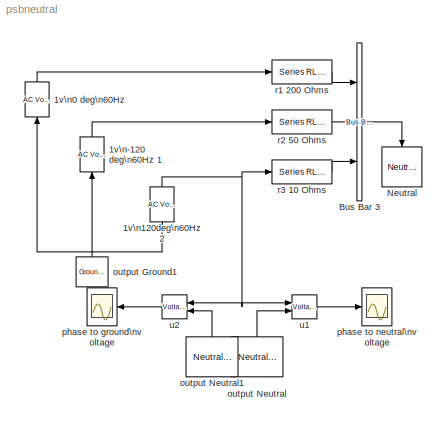
MODEL psbneutral
KIND model
BLOCK [Reference] 1v\n-120 deg\n60Hz 1  REF=powerlib2/Electrical\nSources/AC Voltage Source
  A = 1
  F = 60
  P = -120
  PSBOutputType = 1
  Ports = [1, 1]
  SourceBlock = powerlib2/Electrical\nSources/AC Voltage Source
  SourceType = AC Voltage Source
  Tag = PoWeRsYsTeMbLoCk
  mesure = None
  stime = 0
BLOCK [Reference] 1v\n0 deg\n60Hz   REF=powerlib2/Electrical\nSources/AC Voltage Source
  A = 1
  F = 60
  P = 0
  PSBOutputType = 1
  Ports = [1, 1]
  SourceBlock = powerlib2/Electrical\nSources/AC Voltage Source
  SourceType = AC Voltage Source
  Tag = PoWeRsYsTeMbLoCk
  mesure = None
  stime = 0
BLOCK [Reference] 1v\n120deg\n60Hz 2  REF=powerlib2/Electrical\nSources/AC Voltage Source
  A = 1
  F = 60
  P = 120
  PSBOutputType = 1
  Ports = [1, 1]
  SourceBlock = powerlib2/Electrical\nSources/AC Voltage Source
  SourceType = AC Voltage Source
  Tag = PoWeRsYsTeMbLoCk
  mesure = None
  stime = 0
BLOCK [Reference] Bus Bar 3  REF=powerlib2/Connectors/Bus Bar (thin vert)
  PSBOutputType = 111111111111111111111111111111111111111111111111111111111111111111111111111111111111
  Ports = [3, 1]
  SourceBlock = powerlib2/Connectors/Bus Bar (thin vert)
  SourceType = Bus Bar
  Tag = PoWeRsYsTeMbLoCk
  input = 3
  output = 1
BLOCK [Reference] Neutral  REF=powerlib2/Connectors/Neutral (input)
  Ports = [1]
  SourceBlock = powerlib2/Connectors/Neutral (input)
  SourceType = Neutral
  Tag = PoWeRsYsTeMbLoCk
  no = 50
BLOCK [Reference] output Ground1  REF=powerlib2/Connectors/Ground (output)
  PSBOutputType = 1
  Ports = [0, 1]
  SourceBlock = powerlib2/Connectors/Ground (output)
  SourceType = Ground
  Tag = PoWeRsYsTeMbLoCk
BLOCK [Reference] output Neutral  REF=powerlib2/Connectors/Neutral (output)
  PSBOutputType = 1
  Ports = [0, 1]
  SourceBlock = powerlib2/Connectors/Neutral (output)
  SourceType = Neutral
  Tag = PoWeRsYsTeMbLoCk
  no = 50
BLOCK [Reference] output Neutral1  REF=powerlib2/Connectors/Neutral (output)
  PSBOutputType = 1
  Ports = [0, 1]
  SourceBlock = powerlib2/Connectors/Neutral (output)
  SourceType = Neutral
  Tag = PoWeRsYsTeMbLoCk
  no = 0
BLOCK [Scope] phase to ground\nvoltage
  DataFormat = Array
  NumInputPorts = 1
  Ports = [1]
  TickLabels = on
  TimeRange = 0.1
  YMax = 1.2
  YMin = -1.2
BLOCK [Scope] phase to neutral\nvoltage
  DataFormat = Array
  NumInputPorts = 1
  Ports = [1]
  TickLabels = on
  TimeRange = 0.1
  YMax = 1.2
  YMin = -1.2
BLOCK [Reference] r1 200 Ohms  REF=powerlib2/Elements/Series RLC Branch
  PSBOutputType = 1
  Ports = [1, 1]
  SourceBlock = powerlib2/Elements/Series RLC Branch
  SourceType = Series RLC Branch
  Tag = PoWeRsYsTeMbLoCk
  a = 200
  b = 0
  c = inf
  mesure = None
BLOCK [Reference] r2 50 Ohms  REF=powerlib2/Elements/Series RLC Branch
  PSBOutputType = 1
  Ports = [1, 1]
  SourceBlock = powerlib2/Elements/Series RLC Branch
  SourceType = Series RLC Branch
  Tag = PoWeRsYsTeMbLoCk
  a = 50
  b = 0
  c = inf
  mesure = None
BLOCK [Reference] r3 10 Ohms  REF=powerlib2/Elements/Series RLC Branch
  PSBOutputType = 1
  Ports = [1, 1]
  SourceBlock = powerlib2/Elements/Series RLC Branch
  SourceType = Series RLC Branch
  Tag = PoWeRsYsTeMbLoCk
  a = 10
  b = 0
  c = inf
  mesure = None
BLOCK [Reference] u1  REF=powerlib2/Measurements/Voltage Measurement
  OutputType = Magnitude
  PSBOutputType = 0
  PSBequivalent = 0
  PhasorSimulation = off
  Ports = [2, 1]
  SourceBlock = powerlib2/Measurements/Voltage Measurement
  SourceType = Voltage Measurement
  Tag = PoWeRsYsTeMmEaSuReMeNt
BLOCK [Reference] u2  REF=powerlib2/Measurements/Voltage Measurement
  OutputType = Magnitude
  PSBOutputType = 0
  PSBequivalent = 0
  PhasorSimulation = off
  Ports = [2, 1]
  SourceBlock = powerlib2/Measurements/Voltage Measurement
  SourceType = Voltage Measurement
  Tag = PoWeRsYsTeMmEaSuReMeNt
LINE 1v\n-120 deg\n60Hz 1:1 -> r2 50 Ohms:1
LINE 1v\n0 deg\n60Hz :1 -> r1 200 Ohms:1
NET 1v\n120deg\n60Hz 2:1 -> r3 10 Ohms:1, u1:1, u2:1
LINE Bus Bar 3:1 -> Neutral:1
NET output Ground1:1 -> 1v\n-120 deg\n60Hz 1:1, 1v\n0 deg\n60Hz :1, 1v\n120deg\n60Hz 2:1
LINE output Neutral1:1 -> u2:2
LINE output Neutral:1 -> u1:2
LINE r1 200 Ohms:1 -> Bus Bar 3:1
LINE r2 50 Ohms:1 -> Bus Bar 3:2
LINE r3 10 Ohms:1 -> Bus Bar 3:3
LINE u1:1 -> phase to neutral\nvoltage:1
LINE u2:1 -> phase to ground\nvoltage:1
note: NET lines group one-source signal fan-out (src -> all destinations, sorted); 1:1 wires keep LINE
